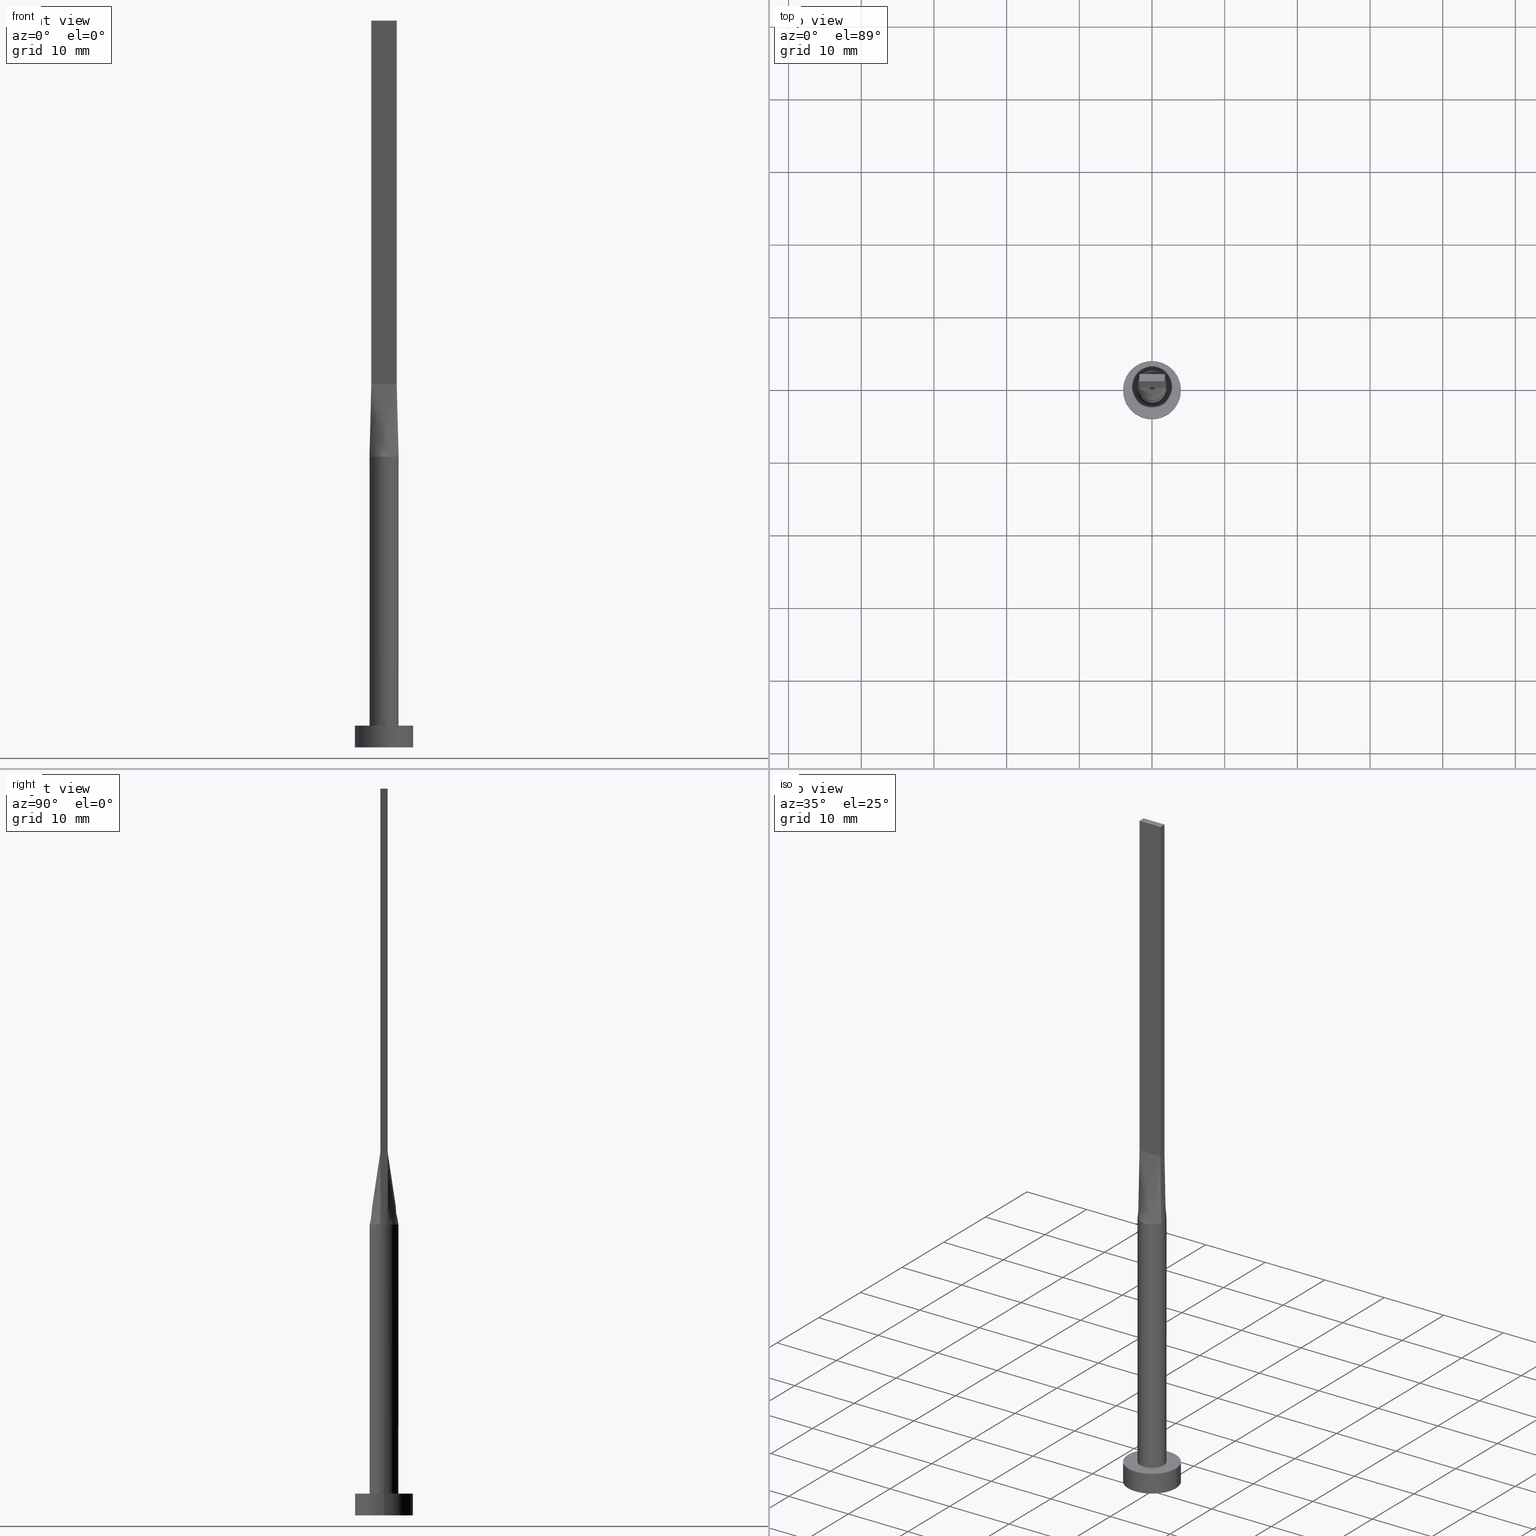
[diagram: canonical four-view strip — front | top / right | iso, engineering-drawing reading convention]
A machine part, canonical four-view strip (front | top / right | iso — engineering-drawing reading convention). The complete STEP part file that produces these views, byte-faithful:
ISO-10303-21;
HEADER;
FILE_DESCRIPTION (( 'STEP AP203' ),
    '1' );
FILE_NAME ('582c.STEP',
    '2023-02-13T12:16:05',
    ( '' ),
    ( '' ),
    'SwSTEP 2.0',
    'SolidWorks 2019',
    '' );
FILE_SCHEMA (( 'CONFIG_CONTROL_DESIGN' ));
ENDSEC;

DATA;
#1 = COORDINATED_UNIVERSAL_TIME_OFFSET ( 1, 0, .AHEAD. ) ;
#2 = CARTESIAN_POINT ( 'NONE',  ( -1.750000000000000000, -0.4999999999999995559, 100.0000000000000000 ) ) ;
#3 = CARTESIAN_POINT ( 'NONE',  ( 1.923047895281646102, -0.5494422557947566954, 40.00000000000000000 ) ) ;
#4 = ORIENTED_EDGE ( 'NONE', *, *, #26, .T. ) ;
#5 = CARTESIAN_POINT ( 'NONE',  ( 1.749999999999999778, 0.5000000000000002220, 100.0000000000000000 ) ) ;
#6 = CARTESIAN_POINT ( 'NONE',  ( 1.973362360690451567, 0.3733416268639386804, 40.00000000000000000 ) ) ;
#7 = LINE ( 'NONE', #135, #498 ) ;
#8 = ORIENTED_EDGE ( 'NONE', *, *, #58, .T. ) ;
#9 = CARTESIAN_POINT ( 'NONE',  ( 0.2916666666666681285, -0.4999999999999997780, 50.00000000000000000 ) ) ;
#10 = CARTESIAN_POINT ( 'NONE',  ( -2.000000000000000000, 0.000000000000000000, 40.00000000000000000 ) ) ;
#11 = ORIENTED_EDGE ( 'NONE', *, *, #225, .T. ) ;
#12 = APPROVAL_PERSON_ORGANIZATION ( #78, #377, #303 ) ;
#13 = CARTESIAN_POINT ( 'NONE',  ( 1.155438169178558017, -1.647245198242354158, 40.00000000000002132 ) ) ;
#14 = LINE ( 'NONE', #244, #236 ) ;
#15 = EDGE_CURVE ( 'NONE', #76, #77, #482, .T. ) ;
#16 = APPROVAL_PERSON_ORGANIZATION ( #169, #434, #28 ) ;
#17 =( NAMED_UNIT ( * ) SI_UNIT ( $, .STERADIAN. ) SOLID_ANGLE_UNIT ( ) );
#18 = CARTESIAN_POINT ( 'NONE',  ( -1.879022738048941710, 0.7035303061092221810, 40.00000000000000000 ) ) ;
#19 = ORIENTED_EDGE ( 'NONE', *, *, #497, .T. ) ;
#20 = EDGE_CURVE ( 'NONE', #469, #278, #352, .T. ) ;
#21 = ORIENTED_EDGE ( 'NONE', *, *, #326, .T. ) ;
#22 = DIRECTION ( 'NONE',  ( 0.000000000000000000, 0.000000000000000000, 1.000000000000000000 ) ) ;
#23 = CARTESIAN_POINT ( 'NONE',  ( 0.5022746254375803909, 1.951069421695587947, 40.00000000000000000 ) ) ;
#24 = ORIENTED_EDGE ( 'NONE', *, *, #15, .T. ) ;
#25 = CARTESIAN_POINT ( 'NONE',  ( -0.1458333333333343695, 0.5000000000000002220, 50.00000000000000000 ) ) ;
#26 = EDGE_CURVE ( 'NONE', #100, #422, #350, .T. ) ;
#27 = COORDINATED_UNIVERSAL_TIME_OFFSET ( 1, 0, .AHEAD. ) ;
#28 = APPROVAL_ROLE ( '' ) ;
#29 = DIRECTION ( 'NONE',  ( -0.000000000000000000, -0.000000000000000000, -1.000000000000000000 ) ) ;
#30 = LOCAL_TIME ( 13, 16, 5.000000000000000000, #27 ) ;
#31 = DIRECTION ( 'NONE',  ( 1.000000000000000000, 0.000000000000000000, 0.000000000000000000 ) ) ;
#32 = PERSON_AND_ORGANIZATION_ROLE ( 'classification_officer' ) ;
#33 = DATE_AND_TIME ( #79, #140 ) ;
#34 = DIRECTION ( 'NONE',  ( -1.000000000000000000, 0.000000000000000000, 0.000000000000000000 ) ) ;
#35 = DIRECTION ( 'NONE',  ( -0.000000000000000000, -0.000000000000000000, -1.000000000000000000 ) ) ;
#36 = CARTESIAN_POINT ( 'NONE',  ( -1.750000000000000000, -0.4999999999999995559, 100.0000000000000000 ) ) ;
#37 = EDGE_CURVE ( 'NONE', #301, #278, #118, .T. ) ;
#38 = CLOSED_SHELL ( 'NONE', ( #445, #529, #114, #138, #414, #519, #302, #552, #289, #246, #409, #512, #230, #62, #183 ) ) ;
#39 = CYLINDRICAL_SURFACE ( 'NONE', #467, 2.000000000000000000 ) ;
#40 = ORIENTED_EDGE ( 'NONE', *, *, #210, .T. ) ;
#41 = CARTESIAN_POINT ( 'NONE',  ( -4.000000000000000000, 0.000000000000000000, 0.000000000000000000 ) ) ;
#42 = VECTOR ( 'NONE', #357, 1000.000000000000000 ) ;
#43 = FACE_OUTER_BOUND ( 'NONE', #397, .T. ) ;
#44 = CARTESIAN_POINT ( 'NONE',  ( 1.616149014776643522, 1.193458220519943103, 40.00000000000000000 ) ) ;
#45 = VECTOR ( 'NONE', #71, 1000.000000000000000 ) ;
#46 = CARTESIAN_POINT ( 'NONE',  ( 0.000000000000000000, 0.000000000000000000, 40.00000000000000000 ) ) ;
#47 = DIRECTION ( 'NONE',  ( 1.000000000000000000, 0.000000000000000000, 0.000000000000000000 ) ) ;
#48 = CARTESIAN_POINT ( 'NONE',  ( 1.749999999999998890, 0.5000000000000002220, 50.00000000000000000 ) ) ;
#49 = DIRECTION ( 'NONE',  ( 0.000000000000000000, 0.000000000000000000, 1.000000000000000000 ) ) ;
#50 = CARTESIAN_POINT ( 'NONE',  ( 1.923186205402444449, -0.5494823831763672173, 40.00000000000000000 ) ) ;
#51 = EDGE_CURVE ( 'NONE', #410, #278, #219, .T. ) ;
#52 = CARTESIAN_POINT ( 'NONE',  ( 0.5833333333333347026, -0.4999999999999997780, 50.00000000000000000 ) ) ;
#53 = CARTESIAN_POINT ( 'NONE',  ( -1.923047895281646547, -0.5494422557947552521, 40.00000000000000000 ) ) ;
#54 = VERTEX_POINT ( 'NONE', #569 ) ;
#55 = CARTESIAN_POINT ( 'NONE',  ( -0.7291666666666652974, -0.4999999999999995559, 50.00000000000000000 ) ) ;
#56 = APPROVAL_DATE_TIME ( #316, #239 ) ;
#57 = ORIENTED_EDGE ( 'NONE', *, *, #265, .T. ) ;
#58 = EDGE_CURVE ( 'NONE', #422, #84, #248, .T. ) ;
#59 = CARTESIAN_POINT ( 'NONE',  ( -1.155438169178558017, 1.647245198242353936, 40.00000000000001421 ) ) ;
#60 =( GEOMETRIC_REPRESENTATION_CONTEXT ( 3 ) GLOBAL_UNCERTAINTY_ASSIGNED_CONTEXT ( ( #291 ) ) GLOBAL_UNIT_ASSIGNED_CONTEXT ( ( #337, #426, #17 ) ) REPRESENTATION_CONTEXT ( 'NONE', 'WORKASPACE' ) );
#61 = CARTESIAN_POINT ( 'NONE',  ( 1.812374357931689106, -0.8669367617086289890, 40.00000000000000000 ) ) ;
#62 = ADVANCED_FACE ( 'NONE', ( #491 ), #531, .F. ) ;
#63 = CARTESIAN_POINT ( 'NONE',  ( -1.750000000000000000, -0.4999999999999995559, 100.0000000000000000 ) ) ;
#64 = PERSON_AND_ORGANIZATION ( #80, #232 ) ;
#65 = ORIENTED_EDGE ( 'NONE', *, *, #320, .T. ) ;
#66 = CARTESIAN_POINT ( 'NONE',  ( 1.616149014776643522, -1.193458220519943547, 40.00000000000000000 ) ) ;
#67 = ORIENTED_EDGE ( 'NONE', *, *, #155, .T. ) ;
#68 = CARTESIAN_POINT ( 'NONE',  ( 1.020833333333331927, 0.5000000000000002220, 50.00000000000000000 ) ) ;
#69 = VERTEX_POINT ( 'NONE', #579 ) ;
#70 = AXIS2_PLACEMENT_3D ( 'NONE', #46, #266, #129 ) ;
#71 = DIRECTION ( 'NONE',  ( -0.000000000000000000, -0.000000000000000000, -1.000000000000000000 ) ) ;
#72 = DATE_AND_TIME ( #435, #260 ) ;
#73 = ORIENTED_EDGE ( 'NONE', *, *, #94, .T. ) ;
#74 = EDGE_CURVE ( 'NONE', #561, #77, #14, .T. ) ;
#75 = CARTESIAN_POINT ( 'NONE',  ( 0.1458333333333322601, 0.5000000000000002220, 50.00000000000000000 ) ) ;
#76 = VERTEX_POINT ( 'NONE', #408 ) ;
#77 = VERTEX_POINT ( 'NONE', #151 ) ;
#78 = PERSON_AND_ORGANIZATION ( #80, #232 ) ;
#79 = CALENDAR_DATE ( 2023, 13, 2 ) ;
#80 = PERSON ( 'NEUR�EN�', 'NEUR�EN�', 'NEUR�EN�', ('NEUR�EN�'), ('NEUR�EN�'), ('NEUR�EN�') ) ;
#81 = AXIS2_PLACEMENT_3D ( 'NONE', #526, #22, #203 ) ;
#82 = CARTESIAN_POINT ( 'NONE',  ( 1.750000000000000000, -0.4999999999999997780, 100.0000000000000000 ) ) ;
#83 = CARTESIAN_POINT ( 'NONE',  ( 0.000000000000000000, 0.000000000000000000, 40.00000000000000000 ) ) ;
#84 = VERTEX_POINT ( 'NONE', #359 ) ;
#85 = EDGE_CURVE ( 'NONE', #278, #76, #106, .T. ) ;
#86 = DIRECTION ( 'NONE',  ( 0.000000000000000000, 0.000000000000000000, 1.000000000000000000 ) ) ;
#87 = DIRECTION ( 'NONE',  ( -1.000000000000000000, 6.195440985631454085E-17, 0.000000000000000000 ) ) ;
#88 = DIRECTION ( 'NONE',  ( 1.000000000000000000, 0.000000000000000000, 0.000000000000000000 ) ) ;
#89 = DIRECTION ( 'NONE',  ( -1.000000000000000000, 0.000000000000000000, 0.000000000000000000 ) ) ;
#90 = APPROVAL_ROLE ( '' ) ;
#91 = CARTESIAN_POINT ( 'NONE',  ( 1.999999999999999556, -0.1867399261870124894, 39.99999999999999289 ) ) ;
#92 = LOCAL_TIME ( 13, 16, 5.000000000000000000, #1 ) ;
#93 = FACE_OUTER_BOUND ( 'NONE', #360, .T. ) ;
#94 = EDGE_CURVE ( 'NONE', #410, #384, #7, .T. ) ;
#95 = PERSON_AND_ORGANIZATION_ROLE ( 'creator' ) ;
#96 = VERTEX_POINT ( 'NONE', #501 ) ;
#97 = CARTESIAN_POINT ( 'NONE',  ( -0.2916666666666653529, -0.4999999999999995559, 50.00000000000000000 ) ) ;
#98 = VECTOR ( 'NONE', #108, 1000.000000000000227 ) ;
#99 = EDGE_CURVE ( 'NONE', #285, #228, #368, .T. ) ;
#100 = VERTEX_POINT ( 'NONE', #238 ) ;
#101 = CARTESIAN_POINT ( 'NONE',  ( -1.749999999999999778, 0.5000000000000002220, 50.00000000000000000 ) ) ;
#102 = DIRECTION ( 'NONE',  ( -0.000000000000000000, -0.000000000000000000, -1.000000000000000000 ) ) ;
#103 = CARTESIAN_POINT ( 'NONE',  ( 1.749999999999999778, 0.5000000000000002220, 50.00000000000000000 ) ) ;
#104 = ORIENTED_EDGE ( 'NONE', *, *, #570, .T. ) ;
#105 = CIRCLE ( 'NONE', #580, 2.000000000000000000 ) ;
#106 = LINE ( 'NONE', #101, #220 ) ;
#107 = CARTESIAN_POINT ( 'NONE',  ( 1.923047895281646325, -0.5494422557947558072, 40.00000000000000000 ) ) ;
#108 = DIRECTION ( 'NONE',  ( -0.01730198768854152372, -0.004943425053868953992, -0.9998380887777591486 ) ) ;
#109 = FACE_OUTER_BOUND ( 'NONE', #386, .T. ) ;
#110 = ORIENTED_EDGE ( 'NONE', *, *, #309, .F. ) ;
#111 = CARTESIAN_POINT ( 'NONE',  ( -1.458333333333333481, 0.5000000000000002220, 50.00000000000000000 ) ) ;
#112 = SECURITY_CLASSIFICATION_LEVEL ( 'unclassified' ) ;
#113 = CARTESIAN_POINT ( 'NONE',  ( -1.749999999999999778, 0.1666666666666667129, 50.00000000000000000 ) ) ;
#114 = ADVANCED_FACE ( 'NONE', ( #418 ), #152, .T. ) ;
#115 = ORIENTED_EDGE ( 'NONE', *, *, #394, .T. ) ;
#116 = AXIS2_PLACEMENT_3D ( 'NONE', #229, #333, #141 ) ;
#117 = CARTESIAN_POINT ( 'NONE',  ( 0.9545234919502409987, 1.774214358793529955, 40.00000000000000000 ) ) ;
#118 = LINE ( 'NONE', #178, #276 ) ;
#119 = B_SPLINE_SURFACE_WITH_KNOTS ( 'NONE', 3, 1, ( 
 ( #124, #487 ),
 ( #406, #548 ),
 ( #492, #221 ),
 ( #455, #306 ),
 ( #231, #137 ),
 ( #144, #55 ),
 ( #508, #315 ),
 ( #270, #97 ),
 ( #370, #361 ),
 ( #233, #277 ),
 ( #459, #9 ),
 ( #464, #52 ),
 ( #13, #147 ),
 ( #365, #160 ),
 ( #66, #428 ),
 ( #61, #157 ),
 ( #330, #558 ),
 ( #107, #520 ) ),
 .UNSPECIFIED., .F., .F., .F.,
 ( 4, 2, 2, 2, 2, 2, 2, 2, 4 ),
 ( 2, 2 ),
 ( 0.000000000000000000, 0.1249999999999999722, 0.2500000000000000000, 0.3750000000000000000, 0.5000000000000001110, 0.6250000000000001110, 0.7500000000000000000, 0.8750000000000000000, 1.000000000000000000 ),
 ( 0.000000000000000000, 1.000000000000000000 ),
 .UNSPECIFIED. ) ;
#120 = CARTESIAN_POINT ( 'NONE',  ( -1.749999999999999778, 0.3333333333333334259, 50.00000000000000000 ) ) ;
#121 = CARTESIAN_POINT ( 'NONE',  ( -1.749999999999999778, 0.5000000000000002220, 50.00000000000000000 ) ) ;
#122 = DATE_TIME_ROLE ( 'classification_date' ) ;
#123 = CARTESIAN_POINT ( 'NONE',  ( -1.749999999999999778, -0.1666666666666665186, 50.00000000000000000 ) ) ;
#124 = CARTESIAN_POINT ( 'NONE',  ( -1.923047895281646547, -0.5494422557947552521, 40.00000000000000000 ) ) ;
#125 = DIRECTION ( 'NONE',  ( 1.000000000000000000, 0.000000000000000000, 0.000000000000000000 ) ) ;
#126 = EDGE_CURVE ( 'NONE', #384, #76, #211, .T. ) ;
#127 = DIRECTION ( 'NONE',  ( 1.000000000000000000, -6.195440985631454085E-17, 0.000000000000000000 ) ) ;
#128 = CARTESIAN_POINT ( 'NONE',  ( -1.749999999999999778, 0.5000000000000002220, 100.0000000000000000 ) ) ;
#129 = DIRECTION ( 'NONE',  ( -1.000000000000000000, 0.000000000000000000, 0.000000000000000000 ) ) ;
#130 = CARTESIAN_POINT ( 'NONE',  ( 1.923154993136894975, 0.5494733089275741778, 40.00000000000000000 ) ) ;
#131 = CARTESIAN_POINT ( 'NONE',  ( 0.000000000000000000, 0.000000000000000000, 3.000000000000000000 ) ) ;
#132 = APPLICATION_PROTOCOL_DEFINITION ( 'international standard', 'config_control_design', 1994, #344 ) ;
#133 = CARTESIAN_POINT ( 'NONE',  ( 0.000000000000000000, 0.000000000000000000, 0.000000000000000000 ) ) ;
#134 = ORIENTED_EDGE ( 'NONE', *, *, #507, .T. ) ;
#135 = CARTESIAN_POINT ( 'NONE',  ( -1.749999999999999778, 0.5000000000000002220, 100.0000000000000000 ) ) ;
#136 = CARTESIAN_POINT ( 'NONE',  ( 1.923047895281646325, 0.5494422557947561403, 40.00000000000000000 ) ) ;
#137 = CARTESIAN_POINT ( 'NONE',  ( -1.020833333333332149, -0.4999999999999995559, 50.00000000000000000 ) ) ;
#138 = ADVANCED_FACE ( 'NONE', ( #215, #317 ), #575, .T. ) ;
#139 = CARTESIAN_POINT ( 'NONE',  ( 1.749999999999999778, 0.5000000000000002220, 50.00000000000000000 ) ) ;
#140 = LOCAL_TIME ( 13, 16, 5.000000000000000000, #392 ) ;
#141 = DIRECTION ( 'NONE',  ( 1.000000000000000000, 0.000000000000000000, 0.000000000000000000 ) ) ;
#142 = ORIENTED_EDGE ( 'NONE', *, *, #194, .F. ) ;
#143 = EDGE_CURVE ( 'NONE', #228, #285, #564, .T. ) ;
#144 = CARTESIAN_POINT ( 'NONE',  ( -1.155438169178558461, -1.647245198242353714, 40.00000000000000711 ) ) ;
#145 = APPROVAL_STATUS ( 'not_yet_approved' ) ;
#146 = AXIS2_PLACEMENT_3D ( 'NONE', #274, #470, #456 ) ;
#147 = CARTESIAN_POINT ( 'NONE',  ( 0.7291666666666678509, -0.4999999999999997780, 50.00000000000000000 ) ) ;
#148 = CARTESIAN_POINT ( 'NONE',  ( -1.486037034853319616, 1.356520562679218056, 40.00000000000000000 ) ) ;
#149 = CARTESIAN_POINT ( 'NONE',  ( 1.604166666666665408, 0.5000000000000002220, 50.00000000000000000 ) ) ;
#150 = AXIS2_PLACEMENT_3D ( 'NONE', #307, #49, #412 ) ;
#151 = CARTESIAN_POINT ( 'NONE',  ( 1.750000000000000000, -0.4999999999999997780, 50.00000000000000000 ) ) ;
#152 = CYLINDRICAL_SURFACE ( 'NONE', #146, 4.000000000000000000 ) ;
#153 = EDGE_LOOP ( 'NONE', ( #533, #247 ) ) ;
#154 = ORIENTED_EDGE ( 'NONE', *, *, #210, .F. ) ;
#155 = EDGE_CURVE ( 'NONE', #54, #469, #355, .T. ) ;
#156 = B_SPLINE_SURFACE_WITH_KNOTS ( 'NONE', 3, 1, ( 
 ( #3, #577 ),
 ( #396, #462 ),
 ( #91, #268 ),
 ( #354, #181 ),
 ( #6, #544 ),
 ( #356, #139 ) ),
 .UNSPECIFIED., .F., .F., .F.,
 ( 4, 2, 4 ),
 ( 2, 2 ),
 ( 0.000000000000000000, 0.5000000000000000000, 1.000000000000000000 ),
 ( 0.000000000000000000, 1.000000000000000000 ),
 .UNSPECIFIED. ) ;
#157 = CARTESIAN_POINT ( 'NONE',  ( 1.458333333333333925, -0.4999999999999997780, 50.00000000000000000 ) ) ;
#158 = VECTOR ( 'NONE', #420, 1000.000000000000000 ) ;
#159 = ORIENTED_EDGE ( 'NONE', *, *, #37, .F. ) ;
#160 = CARTESIAN_POINT ( 'NONE',  ( 1.020833333333334147, -0.4999999999999997780, 50.00000000000000000 ) ) ;
#161 = CARTESIAN_POINT ( 'NONE',  ( 4.000000000000000000, 4.898587196589412829E-16, 0.000000000000000000 ) ) ;
#162 = ORIENTED_EDGE ( 'NONE', *, *, #265, .F. ) ;
#163 = CARTESIAN_POINT ( 'NONE',  ( 1.166666666666665186, 0.5000000000000002220, 50.00000000000000000 ) ) ;
#164 = EDGE_CURVE ( 'NONE', #54, #410, #358, .T. ) ;
#165 = ORIENTED_EDGE ( 'NONE', *, *, #478, .T. ) ;
#166 = VECTOR ( 'NONE', #35, 1000.000000000000000 ) ;
#167 = PERSON_AND_ORGANIZATION_ROLE ( 'creator' ) ;
#168 = ORIENTED_EDGE ( 'NONE', *, *, #126, .F. ) ;
#169 = PERSON_AND_ORGANIZATION ( #80, #232 ) ;
#170 = APPROVAL_PERSON_ORGANIZATION ( #190, #239, #90 ) ;
#171 = CARTESIAN_POINT ( 'NONE',  ( -1.604166666666666519, 0.5000000000000002220, 50.00000000000000000 ) ) ;
#172 = DIRECTION ( 'NONE',  ( 0.000000000000000000, 0.000000000000000000, 1.000000000000000000 ) ) ;
#173 = CARTESIAN_POINT ( 'NONE',  ( 0.7291666666666652974, 0.5000000000000002220, 50.00000000000000000 ) ) ;
#174 = FACE_OUTER_BOUND ( 'NONE', #522, .T. ) ;
#175 = ORIENTED_EDGE ( 'NONE', *, *, #99, .F. ) ;
#176 = COORDINATED_UNIVERSAL_TIME_OFFSET ( 1, 0, .AHEAD. ) ;
#177 = PERSON_AND_ORGANIZATION_ROLE ( 'design_owner' ) ;
#178 = CARTESIAN_POINT ( 'NONE',  ( -1.836523947640823051, 0.5247211278973779036, 45.00000000000000000 ) ) ;
#179 = CARTESIAN_POINT ( 'NONE',  ( -1.749999999999999778, 0.5000000000000002220, 100.0000000000000000 ) ) ;
#180 = CARTESIAN_POINT ( 'NONE',  ( 0.000000000000000000, 0.000000000000000000, 3.000000000000000000 ) ) ;
#181 = CARTESIAN_POINT ( 'NONE',  ( 1.749999999999999778, 0.1666666666666663243, 50.00000000000000000 ) ) ;
#182 = DIRECTION ( 'NONE',  ( 0.000000000000000000, -0.000000000000000000, -1.000000000000000000 ) ) ;
#183 = ADVANCED_FACE ( 'NONE', ( #93 ), #461, .T. ) ;
#184 = DIRECTION ( 'NONE',  ( -0.000000000000000000, -0.000000000000000000, -1.000000000000000000 ) ) ;
#185 = DIRECTION ( 'NONE',  ( -0.000000000000000000, -0.000000000000000000, -1.000000000000000000 ) ) ;
#186 = AXIS2_PLACEMENT_3D ( 'NONE', #348, #530, #125 ) ;
#187 = ORIENTED_EDGE ( 'NONE', *, *, #394, .F. ) ;
#188 = CC_DESIGN_PERSON_AND_ORGANIZATION_ASSIGNMENT ( #64, #167, ( #419 ) ) ;
#189 = CARTESIAN_POINT ( 'NONE',  ( -1.749999999999999778, -0.3333333333333330373, 50.00000000000000000 ) ) ;
#190 = PERSON_AND_ORGANIZATION ( #80, #232 ) ;
#191 = B_SPLINE_CURVE_WITH_KNOTS ( 'NONE', 3,
 ( #130, #267, #452, #44, #495, #502, #335, #327, #473, #325, #234, #415, #59, #148, #245, #421, #18, #374 ),
 .UNSPECIFIED., .F., .F.,
 ( 4, 2, 2, 2, 2, 2, 2, 2, 4 ),
 ( 0.000000000000000000, 0.1249999999999999722, 0.2500000000000000000, 0.3750000000000000000, 0.5000000000000001110, 0.6250000000000001110, 0.7500000000000000000, 0.8750000000000000000, 1.000000000000000000 ),
 .UNSPECIFIED. ) ;
#192 = CIRCLE ( 'NONE', #81, 2.000000000000000000 ) ;
#193 = EDGE_LOOP ( 'NONE', ( #241, #175 ) ) ;
#194 = EDGE_CURVE ( 'NONE', #468, #84, #395, .T. ) ;
#195 = VERTEX_POINT ( 'NONE', #363 ) ;
#196 = ORIENTED_EDGE ( 'NONE', *, *, #74, .T. ) ;
#197 = CC_DESIGN_APPROVAL ( #434, ( #369 ) ) ;
#198 = ORIENTED_EDGE ( 'NONE', *, *, #20, .T. ) ;
#199 = EDGE_CURVE ( 'NONE', #301, #468, #364, .T. ) ;
#200 = CARTESIAN_POINT ( 'NONE',  ( -0.5022746254375797248, 1.951069421695588169, 40.00000000000000000 ) ) ;
#201 = DIRECTION ( 'NONE',  ( 1.000000000000000000, 0.000000000000000000, 0.000000000000000000 ) ) ;
#202 = PERSON_AND_ORGANIZATION ( #80, #232 ) ;
#203 = DIRECTION ( 'NONE',  ( 1.000000000000000000, 3.552713678800500929E-15, 0.000000000000000000 ) ) ;
#204 = CARTESIAN_POINT ( 'NONE',  ( -0.2916666666666677954, 0.5000000000000002220, 50.00000000000000000 ) ) ;
#205 = ORIENTED_EDGE ( 'NONE', *, *, #164, .T. ) ;
#206 = EDGE_LOOP ( 'NONE', ( #198, #416, #378, #67 ) ) ;
#207 = CARTESIAN_POINT ( 'NONE',  ( -1.155438169178558017, 1.647245198242353936, 40.00000000000001421 ) ) ;
#208 = CIRCLE ( 'NONE', #116, 2.000000000000000000 ) ;
#209 = APPROVAL_DATE_TIME ( #72, #377 ) ;
#210 = EDGE_CURVE ( 'NONE', #561, #100, #192, .T. ) ;
#211 = LINE ( 'NONE', #2, #399 ) ;
#212 = CARTESIAN_POINT ( 'NONE',  ( 0.000000000000000000, 0.000000000000000000, 3.000000000000000000 ) ) ;
#213 = DIRECTION ( 'NONE',  ( -0.000000000000000000, -0.000000000000000000, -1.000000000000000000 ) ) ;
#214 = DIRECTION ( 'NONE',  ( 6.195440985631454085E-17, 1.000000000000000000, -0.000000000000000000 ) ) ;
#215 = FACE_BOUND ( 'NONE', #514, .T. ) ;
#216 = CARTESIAN_POINT ( 'NONE',  ( 1.486037034853319616, 1.356520562679217834, 39.99999999999997868 ) ) ;
#217 = DIRECTION ( 'NONE',  ( 0.000000000000000000, 0.000000000000000000, 1.000000000000000000 ) ) ;
#218 = FACE_OUTER_BOUND ( 'NONE', #193, .T. ) ;
#219 = LINE ( 'NONE', #128, #166 ) ;
#220 = VECTOR ( 'NONE', #427, 1000.000000000000000 ) ;
#221 = CARTESIAN_POINT ( 'NONE',  ( -1.458333333333332815, -0.4999999999999995559, 50.00000000000000000 ) ) ;
#222 = CARTESIAN_POINT ( 'NONE',  ( 0.000000000000000000, 0.000000000000000000, 0.000000000000000000 ) ) ;
#223 = DESIGN_CONTEXT ( 'detailed design', #442, 'design' ) ;
#224 = AXIS2_PLACEMENT_3D ( 'NONE', #547, #436, #336 ) ;
#225 = EDGE_CURVE ( 'NONE', #77, #469, #566, .T. ) ;
#226 = CARTESIAN_POINT ( 'NONE',  ( 1.836523947640823051, 0.5247211278973783477, 45.00000000000000000 ) ) ;
#227 = DIRECTION ( 'NONE',  ( -0.000000000000000000, -0.000000000000000000, -1.000000000000000000 ) ) ;
#228 = VERTEX_POINT ( 'NONE', #41 ) ;
#229 = CARTESIAN_POINT ( 'NONE',  ( 0.000000000000000000, 0.000000000000000000, 40.00000000000000000 ) ) ;
#230 = ADVANCED_FACE ( 'NONE', ( #535 ), #581, .F. ) ;
#231 = CARTESIAN_POINT ( 'NONE',  ( -1.486037034853320060, -1.356520562679217390, 39.99999999999999289 ) ) ;
#232 = ORGANIZATION ( 'NEUR�EN�', 'NEUR�EN�', '' ) ;
#233 = CARTESIAN_POINT ( 'NONE',  ( 0.2514338042514523419, -2.000000000000000444, 40.00000000000000000 ) ) ;
#234 = CARTESIAN_POINT ( 'NONE',  ( -0.5022746254375797248, 1.951069421695588169, 40.00000000000000000 ) ) ;
#235 = ORIENTED_EDGE ( 'NONE', *, *, #320, .F. ) ;
#236 = VECTOR ( 'NONE', #515, 1000.000000000000227 ) ;
#237 = AXIS2_PLACEMENT_3D ( 'NONE', #180, #271, #402 ) ;
#238 = CARTESIAN_POINT ( 'NONE',  ( 2.000000000000000000, 2.759698982225367658E-17, 39.99999999999999289 ) ) ;
#239 = APPROVAL ( #145, 'NEUR�EN�' ) ;
#240 = AXIS2_PLACEMENT_3D ( 'NONE', #133, #86, #541 ) ;
#241 = ORIENTED_EDGE ( 'NONE', *, *, #143, .F. ) ;
#242 = CARTESIAN_POINT ( 'NONE',  ( -1.999999999999999556, 0.1867399261870127114, 39.99999999999999289 ) ) ;
#243 = EDGE_LOOP ( 'NONE', ( #494, #168, #565, #559 ) ) ;
#244 = CARTESIAN_POINT ( 'NONE',  ( 1.836523947640823051, -0.5247211278973777926, 45.00000000000000000 ) ) ;
#245 = CARTESIAN_POINT ( 'NONE',  ( -1.616149014776643966, 1.193458220519943103, 40.00000000000002132 ) ) ;
#246 = ADVANCED_FACE ( 'NONE', ( #538 ), #387, .T. ) ;
#247 = ORIENTED_EDGE ( 'NONE', *, *, #537, .T. ) ;
#248 = CIRCLE ( 'NONE', #314, 2.000000000000000000 ) ;
#249 = CARTESIAN_POINT ( 'NONE',  ( -0.7291666666666674068, 0.5000000000000002220, 50.00000000000000000 ) ) ;
#250 = DIRECTION ( 'NONE',  ( 0.000000000000000000, 0.000000000000000000, 1.000000000000000000 ) ) ;
#251 = AXIS2_PLACEMENT_3D ( 'NONE', #212, #217, #403 ) ;
#252 = FACE_OUTER_BOUND ( 'NONE', #243, .T. ) ;
#253 = ORIENTED_EDGE ( 'NONE', *, *, #99, .T. ) ;
#254 = CARTESIAN_POINT ( 'NONE',  ( -1.750000000000000000, -0.4999999999999995559, 50.00000000000000000 ) ) ;
#255 = CARTESIAN_POINT ( 'NONE',  ( 0.000000000000000000, 0.000000000000000000, 0.000000000000000000 ) ) ;
#256 = LINE ( 'NONE', #443, #568 ) ;
#257 = CC_DESIGN_PERSON_AND_ORGANIZATION_ASSIGNMENT ( #202, #432, ( #419 ) ) ;
#258 = APPROVAL_STATUS ( 'not_yet_approved' ) ;
#259 = DIRECTION ( 'NONE',  ( 1.000000000000000000, 0.000000000000000000, 0.000000000000000000 ) ) ;
#260 = LOCAL_TIME ( 13, 16, 5.000000000000000000, #176 ) ;
#261 = CC_DESIGN_APPROVAL ( #239, ( #419 ) ) ;
#262 = ORIENTED_EDGE ( 'NONE', *, *, #457, .T. ) ;
#263 = CARTESIAN_POINT ( 'NONE',  ( 0.000000000000000000, 0.000000000000000000, 40.00000000000000000 ) ) ;
#264 = DIRECTION ( 'NONE',  ( 0.01730198768854152372, -0.004943425053868931440, 0.9998380887777591486 ) ) ;
#265 = EDGE_CURVE ( 'NONE', #96, #228, #256, .T. ) ;
#266 = DIRECTION ( 'NONE',  ( -0.000000000000000000, -0.000000000000000000, -1.000000000000000000 ) ) ;
#267 = CARTESIAN_POINT ( 'NONE',  ( 1.879022738048942154, 0.7035303061092218480, 39.99999999999999289 ) ) ;
#268 = CARTESIAN_POINT ( 'NONE',  ( 1.749999999999999778, -0.1666666666666669905, 50.00000000000000000 ) ) ;
#269 = CARTESIAN_POINT ( 'NONE',  ( 1.749999999999999778, 0.5000000000000002220, 100.0000000000000000 ) ) ;
#270 = CARTESIAN_POINT ( 'NONE',  ( -0.5022746254375808350, -1.951069421695587724, 40.00000000000000000 ) ) ;
#271 = DIRECTION ( 'NONE',  ( 0.000000000000000000, 0.000000000000000000, 1.000000000000000000 ) ) ;
#272 = DIRECTION ( 'NONE',  ( 2.168404344971009361E-16, 1.000000000000000000, 0.000000000000000000 ) ) ;
#273 = PRODUCT_RELATED_PRODUCT_CATEGORY ( 'detail', '', ( #509 ) ) ;
#274 = CARTESIAN_POINT ( 'NONE',  ( 0.000000000000000000, 0.000000000000000000, 3.000000000000000000 ) ) ;
#275 = CARTESIAN_POINT ( 'NONE',  ( 1.458333333333332149, 0.5000000000000002220, 50.00000000000000000 ) ) ;
#276 = VECTOR ( 'NONE', #264, 1000.000000000000227 ) ;
#277 = CARTESIAN_POINT ( 'NONE',  ( 0.1458333333333347304, -0.4999999999999997780, 50.00000000000000000 ) ) ;
#278 = VERTEX_POINT ( 'NONE', #393 ) ;
#279 = ADVANCED_BREP_SHAPE_REPRESENTATION ( '582c', ( #411, #546 ), #60 ) ;
#280 = CC_DESIGN_SECURITY_CLASSIFICATION ( #511, ( #419 ) ) ;
#281 = ORIENTED_EDGE ( 'NONE', *, *, #309, .T. ) ;
#282 = ORIENTED_EDGE ( 'NONE', *, *, #126, .T. ) ;
#283 = EDGE_CURVE ( 'NONE', #96, #69, #296, .T. ) ;
#284 = DIRECTION ( 'NONE',  ( -2.168404344971009361E-16, -1.000000000000000000, 0.000000000000000000 ) ) ;
#285 = VERTEX_POINT ( 'NONE', #161 ) ;
#286 = LOCAL_TIME ( 13, 16, 5.000000000000000000, #454 ) ;
#287 = ORIENTED_EDGE ( 'NONE', *, *, #26, .F. ) ;
#288 = CARTESIAN_POINT ( 'NONE',  ( 1.750000000000000000, -0.4999999999999997780, 100.0000000000000000 ) ) ;
#289 = ADVANCED_FACE ( 'NONE', ( #109 ), #299, .T. ) ;
#290 = ORIENTED_EDGE ( 'NONE', *, *, #143, .T. ) ;
#291 = UNCERTAINTY_MEASURE_WITH_UNIT (LENGTH_MEASURE( 1.000000000000000082E-05 ), #337, 'distance_accuracy_value', 'NONE');
#292 = CARTESIAN_POINT ( 'NONE',  ( -1.923047895281646102, 0.5494422557947564734, 40.00000000000000000 ) ) ;
#293 = ORIENTED_EDGE ( 'NONE', *, *, #507, .F. ) ;
#294 = CARTESIAN_POINT ( 'NONE',  ( -1.879022738048941710, 0.7035303061092221810, 40.00000000000000000 ) ) ;
#295 = CARTESIAN_POINT ( 'NONE',  ( -1.999999999999999556, -0.1867399261870113791, 39.99999999999998579 ) ) ;
#296 = CIRCLE ( 'NONE', #186, 4.000000000000000000 ) ;
#297 = ORIENTED_EDGE ( 'NONE', *, *, #58, .F. ) ;
#298 = CARTESIAN_POINT ( 'NONE',  ( 0.5833333333333319271, 0.5000000000000002220, 50.00000000000000000 ) ) ;
#299 = B_SPLINE_SURFACE_WITH_KNOTS ( 'NONE', 3, 1, ( 
 ( #292, #383 ),
 ( #560, #120 ),
 ( #242, #113 ),
 ( #295, #123 ),
 ( #413, #189 ),
 ( #53, #527 ) ),
 .UNSPECIFIED., .F., .F., .F.,
 ( 4, 2, 4 ),
 ( 2, 2 ),
 ( 0.000000000000000000, 0.5000000000000000000, 1.000000000000000000 ),
 ( 0.000000000000000000, 1.000000000000000000 ),
 .UNSPECIFIED. ) ;
#300 = PERSON_AND_ORGANIZATION ( #80, #232 ) ;
#301 = VERTEX_POINT ( 'NONE', #347 ) ;
#302 = ADVANCED_FACE ( 'NONE', ( #472 ), #119, .T. ) ;
#303 = APPROVAL_ROLE ( '' ) ;
#304 = DIRECTION ( 'NONE',  ( 0.000000000000000000, 0.000000000000000000, 1.000000000000000000 ) ) ;
#305 = ORIENTED_EDGE ( 'NONE', *, *, #20, .F. ) ;
#306 = CARTESIAN_POINT ( 'NONE',  ( -1.166666666666665630, -0.4999999999999995559, 50.00000000000000000 ) ) ;
#307 = CARTESIAN_POINT ( 'NONE',  ( 0.000000000000000000, 0.000000000000000000, 100.0000000000000000 ) ) ;
#308 = FACE_OUTER_BOUND ( 'NONE', #206, .T. ) ;
#309 = EDGE_CURVE ( 'NONE', #523, #54, #517, .T. ) ;
#310 = CARTESIAN_POINT ( 'NONE',  ( 2.000000000000000000, 2.449293598294706414E-16, 3.000000000000000000 ) ) ;
#311 = ORIENTED_EDGE ( 'NONE', *, *, #225, .F. ) ;
#312 = CARTESIAN_POINT ( 'NONE',  ( -1.749999999999999778, 0.5000000000000002220, 100.0000000000000000 ) ) ;
#313 = FACE_OUTER_BOUND ( 'NONE', #483, .T. ) ;
#314 = AXIS2_PLACEMENT_3D ( 'NONE', #131, #172, #31 ) ;
#315 = CARTESIAN_POINT ( 'NONE',  ( -0.5833333333333319271, -0.4999999999999995559, 50.00000000000000000 ) ) ;
#316 = DATE_AND_TIME ( #542, #286 ) ;
#317 = FACE_OUTER_BOUND ( 'NONE', #153, .T. ) ;
#318 = VECTOR ( 'NONE', #404, 1000.000000000000227 ) ;
#319 = DIRECTION ( 'NONE',  ( 0.000000000000000000, 0.000000000000000000, 1.000000000000000000 ) ) ;
#320 = EDGE_CURVE ( 'NONE', #76, #450, #334, .T. ) ;
#321 = ORIENTED_EDGE ( 'NONE', *, *, #199, .F. ) ;
#322 = AXIS2_PLACEMENT_3D ( 'NONE', #471, #319, #505 ) ;
#323 = ORIENTED_EDGE ( 'NONE', *, *, #475, .F. ) ;
#324 = VECTOR ( 'NONE', #102, 1000.000000000000000 ) ;
#325 = CARTESIAN_POINT ( 'NONE',  ( -0.2514338042514528415, 1.999999999999999556, 40.00000000000000000 ) ) ;
#326 = EDGE_CURVE ( 'NONE', #69, #285, #379, .T. ) ;
#327 = CARTESIAN_POINT ( 'NONE',  ( 0.5022746254375803909, 1.951069421695587947, 40.00000000000000000 ) ) ;
#328 = ORIENTED_EDGE ( 'NONE', *, *, #155, .F. ) ;
#329 = ORIENTED_EDGE ( 'NONE', *, *, #326, .F. ) ;
#330 = CARTESIAN_POINT ( 'NONE',  ( 1.879022738048941710, -0.7035303061092221810, 40.00000000000000000 ) ) ;
#331 = CC_DESIGN_APPROVAL ( #377, ( #511 ) ) ;
#332 = EDGE_LOOP ( 'NONE', ( #287, #154, #346, #187, #375, #165 ) ) ;
#333 = DIRECTION ( 'NONE',  ( 0.000000000000000000, 0.000000000000000000, 1.000000000000000000 ) ) ;
#334 = LINE ( 'NONE', #373, #98 ) ;
#335 = CARTESIAN_POINT ( 'NONE',  ( 0.9545234919502409987, 1.774214358793529955, 40.00000000000000000 ) ) ;
#336 = DIRECTION ( 'NONE',  ( 1.000000000000000000, 0.000000000000000000, 0.000000000000000000 ) ) ;
#337 =( LENGTH_UNIT ( ) NAMED_UNIT ( * ) SI_UNIT ( .MILLI., .METRE. ) );
#338 = CARTESIAN_POINT ( 'NONE',  ( 0.2916666666666655194, 0.5000000000000002220, 50.00000000000000000 ) ) ;
#339 = VECTOR ( 'NONE', #127, 1000.000000000000000 ) ;
#340 = CC_DESIGN_PERSON_AND_ORGANIZATION_ASSIGNMENT ( #460, #95, ( #369 ) ) ;
#341 = ORIENTED_EDGE ( 'NONE', *, *, #385, .F. ) ;
#342 = APPROVAL_STATUS ( 'not_yet_approved' ) ;
#343 = CARTESIAN_POINT ( 'NONE',  ( -1.923047895281646325, 0.5494422557947555852, 40.00000000000000000 ) ) ;
#344 = APPLICATION_CONTEXT ( 'configuration controlled 3d designs of mechanical parts and assemblies' ) ;
#345 = CARTESIAN_POINT ( 'NONE',  ( 0.000000000000000000, 0.000000000000000000, 3.000000000000000000 ) ) ;
#346 = ORIENTED_EDGE ( 'NONE', *, *, #570, .F. ) ;
#347 = CARTESIAN_POINT ( 'NONE',  ( -1.923179810488875541, 0.5494804890868837388, 40.00000000000000000 ) ) ;
#348 = CARTESIAN_POINT ( 'NONE',  ( 0.000000000000000000, 0.000000000000000000, 3.000000000000000000 ) ) ;
#349 = PLANE ( 'NONE',  #524 ) ;
#350 = LINE ( 'NONE', #573, #417 ) ;
#351 = FACE_OUTER_BOUND ( 'NONE', #332, .T. ) ;
#352 = LINE ( 'NONE', #439, #496 ) ;
#353 = AXIS2_PLACEMENT_3D ( 'NONE', #36, #214, #87 ) ;
#354 = CARTESIAN_POINT ( 'NONE',  ( 1.999999999999999556, 0.1867399261870121008, 39.99999999999998579 ) ) ;
#355 = LINE ( 'NONE', #5, #550 ) ;
#356 = CARTESIAN_POINT ( 'NONE',  ( 1.923047895281646325, 0.5494422557947563623, 40.00000000000000000 ) ) ;
#357 = DIRECTION ( 'NONE',  ( 1.000000000000000000, -6.195440985631454085E-17, 0.000000000000000000 ) ) ;
#358 = LINE ( 'NONE', #543, #401 ) ;
#359 = CARTESIAN_POINT ( 'NONE',  ( -2.000000000000000000, 0.000000000000000000, 3.000000000000000000 ) ) ;
#360 = EDGE_LOOP ( 'NONE', ( #205, #73, #463, #281 ) ) ;
#361 = CARTESIAN_POINT ( 'NONE',  ( -0.1458333333333320381, -0.4999999999999996669, 50.00000000000000000 ) ) ;
#362 = CC_DESIGN_DATE_AND_TIME_ASSIGNMENT ( #465, #539, ( #369 ) ) ;
#363 = CARTESIAN_POINT ( 'NONE',  ( 1.923154993136894975, 0.5494733089275741778, 40.00000000000000000 ) ) ;
#364 = CIRCLE ( 'NONE', #224, 2.000000000000000000 ) ;
#365 = CARTESIAN_POINT ( 'NONE',  ( 1.486037034853319616, -1.356520562679219166, 40.00000000000000711 ) ) ;
#366 = CALENDAR_DATE ( 2023, 13, 2 ) ;
#367 = ORIENTED_EDGE ( 'NONE', *, *, #199, .T. ) ;
#368 = CIRCLE ( 'NONE', #322, 4.000000000000000000 ) ;
#369 = PRODUCT_DEFINITION ( 'NEZN�M�', '', #419, #223 ) ;
#370 = CARTESIAN_POINT ( 'NONE',  ( -0.2514338042514540073, -1.999999999999999112, 39.99999999999999289 ) ) ;
#371 = AXIS2_PLACEMENT_3D ( 'NONE', #499, #448, #34 ) ;
#372 = ORIENTED_EDGE ( 'NONE', *, *, #15, .F. ) ;
#373 = CARTESIAN_POINT ( 'NONE',  ( -1.836523947640823273, -0.5247211278973773485, 45.00000000000000000 ) ) ;
#374 = CARTESIAN_POINT ( 'NONE',  ( -1.923179810488875541, 0.5494804890868837388, 40.00000000000000000 ) ) ;
#375 = ORIENTED_EDGE ( 'NONE', *, *, #194, .T. ) ;
#376 = CARTESIAN_POINT ( 'NONE',  ( 1.879022738048942154, 0.7035303061092218480, 39.99999999999999289 ) ) ;
#377 = APPROVAL ( #258, 'NEUR�EN�' ) ;
#378 = ORIENTED_EDGE ( 'NONE', *, *, #164, .F. ) ;
#379 = LINE ( 'NONE', #513, #324 ) ;
#380 = VECTOR ( 'NONE', #185, 1000.000000000000000 ) ;
#381 = CARTESIAN_POINT ( 'NONE',  ( -1.812374357931688884, 0.8669367617086288780, 40.00000000000001421 ) ) ;
#382 = LINE ( 'NONE', #479, #45 ) ;
#383 = CARTESIAN_POINT ( 'NONE',  ( -1.749999999999999778, 0.5000000000000002220, 50.00000000000000000 ) ) ;
#384 = VERTEX_POINT ( 'NONE', #423 ) ;
#385 = EDGE_CURVE ( 'NONE', #195, #469, #536, .T. ) ;
#386 = EDGE_LOOP ( 'NONE', ( #367, #115, #235, #388, #159 ) ) ;
#387 = B_SPLINE_SURFACE_WITH_KNOTS ( 'NONE', 3, 1, ( 
 ( #136, #48 ),
 ( #376, #149 ),
 ( #510, #275 ),
 ( #553, #163 ),
 ( #216, #68 ),
 ( #484, #173 ),
 ( #117, #298 ),
 ( #23, #338 ),
 ( #562, #75 ),
 ( #518, #25 ),
 ( #200, #204 ),
 ( #571, #438 ),
 ( #207, #249 ),
 ( #390, #567 ),
 ( #521, #430 ),
 ( #381, #111 ),
 ( #294, #171 ),
 ( #343, #121 ) ),
 .UNSPECIFIED., .F., .F., .F.,
 ( 4, 2, 2, 2, 2, 2, 2, 2, 4 ),
 ( 2, 2 ),
 ( 0.000000000000000000, 0.1249999999999999722, 0.2500000000000000000, 0.3750000000000000000, 0.5000000000000001110, 0.6250000000000001110, 0.7500000000000000000, 0.8750000000000000000, 1.000000000000000000 ),
 ( 0.000000000000000000, 1.000000000000000000 ),
 .UNSPECIFIED. ) ;
#388 = ORIENTED_EDGE ( 'NONE', *, *, #85, .F. ) ;
#389 = PERSON_AND_ORGANIZATION ( #80, #232 ) ;
#390 = CARTESIAN_POINT ( 'NONE',  ( -1.486037034853319616, 1.356520562679218056, 40.00000000000000000 ) ) ;
#391 = CIRCLE ( 'NONE', #534, 2.000000000000000000 ) ;
#392 = COORDINATED_UNIVERSAL_TIME_OFFSET ( 1, 0, .AHEAD. ) ;
#393 = CARTESIAN_POINT ( 'NONE',  ( -1.749999999999999778, 0.5000000000000002220, 50.00000000000000000 ) ) ;
#394 = EDGE_CURVE ( 'NONE', #468, #450, #105, .T. ) ;
#395 = LINE ( 'NONE', #10, #380 ) ;
#396 = CARTESIAN_POINT ( 'NONE',  ( 1.973362360690451567, -0.3733416268639390689, 40.00000000000000000 ) ) ;
#397 = EDGE_LOOP ( 'NONE', ( #551, #21, #253, #162 ) ) ;
#398 = AXIS2_PLACEMENT_3D ( 'NONE', #222, #405, #88 ) ;
#399 = VECTOR ( 'NONE', #451, 1000.000000000000000 ) ;
#400 = DIRECTION ( 'NONE',  ( -1.000000000000000000, -2.168404344971008868E-16, 0.000000000000000000 ) ) ;
#401 = VECTOR ( 'NONE', #504, 1000.000000000000000 ) ;
#402 = DIRECTION ( 'NONE',  ( 1.000000000000000000, 0.000000000000000000, -0.000000000000000000 ) ) ;
#403 = DIRECTION ( 'NONE',  ( 1.000000000000000000, 0.000000000000000000, 0.000000000000000000 ) ) ;
#404 = DIRECTION ( 'NONE',  ( -0.01730198768854152372, -0.004943425053869007768, 0.9998380887777591486 ) ) ;
#405 = DIRECTION ( 'NONE',  ( 0.000000000000000000, 0.000000000000000000, 1.000000000000000000 ) ) ;
#406 = CARTESIAN_POINT ( 'NONE',  ( -1.879022738048942598, -0.7035303061092208488, 40.00000000000000000 ) ) ;
#407 = DIRECTION ( 'NONE',  ( 1.000000000000000000, -2.168404344971009361E-16, 0.000000000000000000 ) ) ;
#408 = CARTESIAN_POINT ( 'NONE',  ( -1.750000000000000000, -0.4999999999999995559, 50.00000000000000000 ) ) ;
#409 = ADVANCED_FACE ( 'NONE', ( #308 ), #490, .F. ) ;
#410 = VERTEX_POINT ( 'NONE', #179 ) ;
#411 = MANIFOLD_SOLID_BREP ( 'P�idat vysunut�m5', #38 ) ;
#412 = DIRECTION ( 'NONE',  ( 1.000000000000000000, 0.000000000000000000, -0.000000000000000000 ) ) ;
#413 = CARTESIAN_POINT ( 'NONE',  ( -1.973362360690451345, -0.3733416268639377367, 40.00000000000000000 ) ) ;
#414 = ADVANCED_FACE ( 'NONE', ( #218 ), #578, .F. ) ;
#415 = CARTESIAN_POINT ( 'NONE',  ( -0.9545234919502401105, 1.774214358793530177, 40.00000000000000000 ) ) ;
#416 = ORIENTED_EDGE ( 'NONE', *, *, #51, .F. ) ;
#417 = VECTOR ( 'NONE', #213, 1000.000000000000000 ) ;
#418 = FACE_OUTER_BOUND ( 'NONE', #466, .T. ) ;
#419 = PRODUCT_DEFINITION_FORMATION_WITH_SPECIFIED_SOURCE ( 'LIBOVOLN�', '', #509, .NOT_KNOWN. ) ;
#420 = DIRECTION ( 'NONE',  ( -2.168404344971008868E-16, 1.000000000000000000, 0.000000000000000000 ) ) ;
#421 = CARTESIAN_POINT ( 'NONE',  ( -1.812374357931688884, 0.8669367617086288780, 40.00000000000001421 ) ) ;
#422 = VERTEX_POINT ( 'NONE', #310 ) ;
#423 = CARTESIAN_POINT ( 'NONE',  ( -1.750000000000000000, -0.4999999999999995559, 100.0000000000000000 ) ) ;
#424 = CC_DESIGN_DATE_AND_TIME_ASSIGNMENT ( #486, #122, ( #511 ) ) ;
#425 = CARTESIAN_POINT ( 'NONE',  ( 1.749999999999999778, 0.5000000000000002220, 50.00000000000000000 ) ) ;
#426 =( NAMED_UNIT ( * ) PLANE_ANGLE_UNIT ( ) SI_UNIT ( $, .RADIAN. ) );
#427 = DIRECTION ( 'NONE',  ( -2.168404344971009361E-16, -1.000000000000000000, 0.000000000000000000 ) ) ;
#428 = CARTESIAN_POINT ( 'NONE',  ( 1.166666666666667407, -0.4999999999999997780, 50.00000000000000000 ) ) ;
#429 = ORIENTED_EDGE ( 'NONE', *, *, #283, .F. ) ;
#430 = CARTESIAN_POINT ( 'NONE',  ( -1.166666666666666963, 0.5000000000000002220, 50.00000000000000000 ) ) ;
#431 = CIRCLE ( 'NONE', #446, 2.000000000000000000 ) ;
#432 = PERSON_AND_ORGANIZATION_ROLE ( 'design_supplier' ) ;
#433 = ORIENTED_EDGE ( 'NONE', *, *, #74, .F. ) ;
#434 = APPROVAL ( #342, 'NEUR�EN�' ) ;
#435 = CALENDAR_DATE ( 2023, 13, 2 ) ;
#436 = DIRECTION ( 'NONE',  ( 0.000000000000000000, 0.000000000000000000, 1.000000000000000000 ) ) ;
#437 = APPLICATION_PROTOCOL_DEFINITION ( 'international standard', 'config_control_design', 1994, #442 ) ;
#438 = CARTESIAN_POINT ( 'NONE',  ( -0.5833333333333342585, 0.5000000000000002220, 50.00000000000000000 ) ) ;
#439 = CARTESIAN_POINT ( 'NONE',  ( -1.749999999999999778, 0.5000000000000002220, 50.00000000000000000 ) ) ;
#440 = EDGE_LOOP ( 'NONE', ( #104, #196, #372, #65 ) ) ;
#441 = DIRECTION ( 'NONE',  ( 0.000000000000000000, 0.000000000000000000, 1.000000000000000000 ) ) ;
#442 = APPLICATION_CONTEXT ( 'configuration controlled 3d designs of mechanical parts and assemblies' ) ;
#443 = CARTESIAN_POINT ( 'NONE',  ( -4.000000000000000000, 0.000000000000000000, 3.000000000000000000 ) ) ;
#444 = DIRECTION ( 'NONE',  ( -1.000000000000000000, -0.000000000000000000, -0.000000000000000000 ) ) ;
#445 = ADVANCED_FACE ( 'NONE', ( #313 ), #39, .T. ) ;
#446 = AXIS2_PLACEMENT_3D ( 'NONE', #345, #304, #488 ) ;
#447 = MECHANICAL_CONTEXT ( 'NONE', #344, 'mechanical' ) ;
#448 = DIRECTION ( 'NONE',  ( -0.000000000000000000, -0.000000000000000000, -1.000000000000000000 ) ) ;
#449 = DIRECTION ( 'NONE',  ( 0.000000000000000000, 0.000000000000000000, 1.000000000000000000 ) ) ;
#450 = VERTEX_POINT ( 'NONE', #500 ) ;
#451 = DIRECTION ( 'NONE',  ( -0.000000000000000000, -0.000000000000000000, -1.000000000000000000 ) ) ;
#452 = CARTESIAN_POINT ( 'NONE',  ( 1.812374357931689328, 0.8669367617086293221, 40.00000000000002132 ) ) ;
#453 = DIRECTION ( 'NONE',  ( 2.168404344971008868E-16, -1.000000000000000000, 0.000000000000000000 ) ) ;
#454 = COORDINATED_UNIVERSAL_TIME_OFFSET ( 1, 0, .AHEAD. ) ;
#455 = CARTESIAN_POINT ( 'NONE',  ( -1.616149014776643744, -1.193458220519941326, 39.99999999999998579 ) ) ;
#456 = DIRECTION ( 'NONE',  ( -1.000000000000000000, 0.000000000000000000, 0.000000000000000000 ) ) ;
#457 = EDGE_CURVE ( 'NONE', #195, #301, #191, .T. ) ;
#458 = DIRECTION ( 'NONE',  ( 0.000000000000000000, -1.000000000000000000, 0.000000000000000000 ) ) ;
#459 = CARTESIAN_POINT ( 'NONE',  ( 0.5022746254375793917, -1.951069421695588169, 40.00000000000000000 ) ) ;
#460 = PERSON_AND_ORGANIZATION ( #80, #232 ) ;
#461 = PLANE ( 'NONE',  #150 ) ;
#462 = CARTESIAN_POINT ( 'NONE',  ( 1.749999999999999778, -0.3333333333333334814, 50.00000000000000000 ) ) ;
#463 = ORIENTED_EDGE ( 'NONE', *, *, #475, .T. ) ;
#464 = CARTESIAN_POINT ( 'NONE',  ( 0.9545234919502404436, -1.774214358793530177, 39.99999999999999289 ) ) ;
#465 = DATE_AND_TIME ( #366, #92 ) ;
#466 = EDGE_LOOP ( 'NONE', ( #329, #429, #57, #290 ) ) ;
#467 = AXIS2_PLACEMENT_3D ( 'NONE', #493, #227, #89 ) ;
#468 = VERTEX_POINT ( 'NONE', #554 ) ;
#469 = VERTEX_POINT ( 'NONE', #103 ) ;
#470 = DIRECTION ( 'NONE',  ( -0.000000000000000000, -0.000000000000000000, -1.000000000000000000 ) ) ;
#471 = CARTESIAN_POINT ( 'NONE',  ( 0.000000000000000000, 0.000000000000000000, 0.000000000000000000 ) ) ;
#472 = FACE_OUTER_BOUND ( 'NONE', #440, .T. ) ;
#473 = CARTESIAN_POINT ( 'NONE',  ( 0.2514338042514535632, 1.999999999999999556, 39.99999999999999289 ) ) ;
#474 = VECTOR ( 'NONE', #476, 1000.000000000000000 ) ;
#475 = EDGE_CURVE ( 'NONE', #384, #523, #516, .T. ) ;
#476 = DIRECTION ( 'NONE',  ( -2.168404344971008868E-16, 1.000000000000000000, -0.000000000000000000 ) ) ;
#477 = ORIENTED_EDGE ( 'NONE', *, *, #385, .T. ) ;
#478 = EDGE_CURVE ( 'NONE', #84, #422, #431, .T. ) ;
#479 = CARTESIAN_POINT ( 'NONE',  ( 1.750000000000000000, -0.4999999999999997780, 100.0000000000000000 ) ) ;
#480 = CALENDAR_DATE ( 2023, 13, 2 ) ;
#481 = EDGE_LOOP ( 'NONE', ( #24, #293, #323, #282 ) ) ;
#482 = LINE ( 'NONE', #254, #42 ) ;
#483 = EDGE_LOOP ( 'NONE', ( #555, #4, #8, #142, #321, #549 ) ) ;
#484 = CARTESIAN_POINT ( 'NONE',  ( 1.155438169178558461, 1.647245198242353714, 40.00000000000000000 ) ) ;
#485 = PRODUCT_DEFINITION_SHAPE ( 'NONE', 'NONE',  #369 ) ;
#486 = DATE_AND_TIME ( #480, #30 ) ;
#487 = CARTESIAN_POINT ( 'NONE',  ( -1.750000000000000000, -0.4999999999999995559, 50.00000000000000000 ) ) ;
#488 = DIRECTION ( 'NONE',  ( 1.000000000000000000, 0.000000000000000000, 0.000000000000000000 ) ) ;
#489 = CIRCLE ( 'NONE', #251, 4.000000000000000000 ) ;
#490 = PLANE ( 'NONE',  #503 ) ;
#491 = FACE_OUTER_BOUND ( 'NONE', #556, .T. ) ;
#492 = CARTESIAN_POINT ( 'NONE',  ( -1.812374357931689994, -0.8669367617086277678, 40.00000000000000711 ) ) ;
#493 = CARTESIAN_POINT ( 'NONE',  ( 0.000000000000000000, 0.000000000000000000, 40.00000000000000000 ) ) ;
#494 = ORIENTED_EDGE ( 'NONE', *, *, #85, .T. ) ;
#495 = CARTESIAN_POINT ( 'NONE',  ( 1.486037034853319616, 1.356520562679217834, 39.99999999999997868 ) ) ;
#496 = VECTOR ( 'NONE', #444, 1000.000000000000000 ) ;
#497 = EDGE_CURVE ( 'NONE', #100, #195, #391, .T. ) ;
#498 = VECTOR ( 'NONE', #284, 1000.000000000000000 ) ;
#499 = CARTESIAN_POINT ( 'NONE',  ( 0.000000000000000000, 0.000000000000000000, 3.000000000000000000 ) ) ;
#500 = CARTESIAN_POINT ( 'NONE',  ( -1.923161340940673369, -0.5494751859438878894, 40.00000000000000000 ) ) ;
#501 = CARTESIAN_POINT ( 'NONE',  ( -4.000000000000000000, 0.000000000000000000, 3.000000000000000000 ) ) ;
#502 = CARTESIAN_POINT ( 'NONE',  ( 1.155438169178558461, 1.647245198242353714, 40.00000000000000000 ) ) ;
#503 = AXIS2_PLACEMENT_3D ( 'NONE', #269, #458, #182 ) ;
#504 = DIRECTION ( 'NONE',  ( -1.000000000000000000, 0.000000000000000000, 0.000000000000000000 ) ) ;
#505 = DIRECTION ( 'NONE',  ( 1.000000000000000000, 0.000000000000000000, 0.000000000000000000 ) ) ;
#506 = ORIENTED_EDGE ( 'NONE', *, *, #478, .F. ) ;
#507 = EDGE_CURVE ( 'NONE', #523, #77, #382, .T. ) ;
#508 = CARTESIAN_POINT ( 'NONE',  ( -0.9545234919502417759, -1.774214358793529067, 40.00000000000000000 ) ) ;
#509 = PRODUCT ( '582c', '582c', '', ( #447 ) ) ;
#510 = CARTESIAN_POINT ( 'NONE',  ( 1.812374357931689328, 0.8669367617086293221, 40.00000000000002132 ) ) ;
#511 = SECURITY_CLASSIFICATION ( '', '', #112 ) ;
#512 = ADVANCED_FACE ( 'NONE', ( #252 ), #349, .F. ) ;
#513 = CARTESIAN_POINT ( 'NONE',  ( 4.000000000000000000, 4.898587196589412829E-16, 3.000000000000000000 ) ) ;
#514 = EDGE_LOOP ( 'NONE', ( #506, #297 ) ) ;
#515 = DIRECTION ( 'NONE',  ( -0.01730198768854150290, 0.004943425053868997360, 0.9998380887777591486 ) ) ;
#516 = LINE ( 'NONE', #63, #339 ) ;
#517 = LINE ( 'NONE', #288, #158 ) ;
#518 = CARTESIAN_POINT ( 'NONE',  ( -0.2514338042514528415, 1.999999999999999556, 40.00000000000000000 ) ) ;
#519 = ADVANCED_FACE ( 'NONE', ( #351 ), #540, .T. ) ;
#520 = CARTESIAN_POINT ( 'NONE',  ( 1.750000000000000000, -0.4999999999999997780, 50.00000000000000000 ) ) ;
#521 = CARTESIAN_POINT ( 'NONE',  ( -1.616149014776643966, 1.193458220519943103, 40.00000000000002132 ) ) ;
#522 = EDGE_LOOP ( 'NONE', ( #40, #19, #477, #311, #433 ) ) ;
#523 = VERTEX_POINT ( 'NONE', #82 ) ;
#524 = AXIS2_PLACEMENT_3D ( 'NONE', #312, #407, #272 ) ;
#525 = ORIENTED_EDGE ( 'NONE', *, *, #37, .T. ) ;
#526 = CARTESIAN_POINT ( 'NONE',  ( 0.000000000000000000, 0.000000000000000000, 40.00000000000000000 ) ) ;
#527 = CARTESIAN_POINT ( 'NONE',  ( -1.750000000000000000, -0.4999999999999995559, 50.00000000000000000 ) ) ;
#528 = CARTESIAN_POINT ( 'NONE',  ( 1.750000000000000000, -0.4999999999999997780, 100.0000000000000000 ) ) ;
#529 = ADVANCED_FACE ( 'NONE', ( #43 ), #532, .T. ) ;
#530 = DIRECTION ( 'NONE',  ( 0.000000000000000000, 0.000000000000000000, 1.000000000000000000 ) ) ;
#531 = PLANE ( 'NONE',  #574 ) ;
#532 = CYLINDRICAL_SURFACE ( 'NONE', #371, 4.000000000000000000 ) ;
#533 = ORIENTED_EDGE ( 'NONE', *, *, #283, .T. ) ;
#534 = AXIS2_PLACEMENT_3D ( 'NONE', #83, #250, #201 ) ;
#535 = FACE_OUTER_BOUND ( 'NONE', #481, .T. ) ;
#536 = LINE ( 'NONE', #226, #318 ) ;
#537 = EDGE_CURVE ( 'NONE', #69, #96, #489, .T. ) ;
#538 = FACE_OUTER_BOUND ( 'NONE', #545, .T. ) ;
#539 = DATE_TIME_ROLE ( 'creation_date' ) ;
#540 = CYLINDRICAL_SURFACE ( 'NONE', #70, 2.000000000000000000 ) ;
#541 = DIRECTION ( 'NONE',  ( 1.000000000000000000, 0.000000000000000000, -0.000000000000000000 ) ) ;
#542 = CALENDAR_DATE ( 2023, 13, 2 ) ;
#543 = CARTESIAN_POINT ( 'NONE',  ( 1.749999999999999778, 0.5000000000000002220, 100.0000000000000000 ) ) ;
#544 = CARTESIAN_POINT ( 'NONE',  ( 1.749999999999999778, 0.3333333333333331483, 50.00000000000000000 ) ) ;
#545 = EDGE_LOOP ( 'NONE', ( #262, #525, #305, #341 ) ) ;
#546 = AXIS2_PLACEMENT_3D ( 'NONE', #255, #441, #259 ) ;
#547 = CARTESIAN_POINT ( 'NONE',  ( 0.000000000000000000, 0.000000000000000000, 40.00000000000000000 ) ) ;
#548 = CARTESIAN_POINT ( 'NONE',  ( -1.604166666666666519, -0.4999999999999995559, 50.00000000000000000 ) ) ;
#549 = ORIENTED_EDGE ( 'NONE', *, *, #457, .F. ) ;
#550 = VECTOR ( 'NONE', #184, 1000.000000000000000 ) ;
#551 = ORIENTED_EDGE ( 'NONE', *, *, #537, .F. ) ;
#552 = ADVANCED_FACE ( 'NONE', ( #174 ), #156, .T. ) ;
#553 = CARTESIAN_POINT ( 'NONE',  ( 1.616149014776643522, 1.193458220519943103, 40.00000000000000000 ) ) ;
#554 = CARTESIAN_POINT ( 'NONE',  ( -2.000000000000000000, 8.710755549421510381E-17, 39.99999999999999289 ) ) ;
#555 = ORIENTED_EDGE ( 'NONE', *, *, #497, .F. ) ;
#556 = EDGE_LOOP ( 'NONE', ( #11, #328, #110, #134 ) ) ;
#557 = CC_DESIGN_PERSON_AND_ORGANIZATION_ASSIGNMENT ( #300, #32, ( #511 ) ) ;
#558 = CARTESIAN_POINT ( 'NONE',  ( 1.604166666666666963, -0.4999999999999997780, 50.00000000000000000 ) ) ;
#559 = ORIENTED_EDGE ( 'NONE', *, *, #51, .T. ) ;
#560 = CARTESIAN_POINT ( 'NONE',  ( -1.973362360690451567, 0.3733416268639390134, 40.00000000000000000 ) ) ;
#561 = VERTEX_POINT ( 'NONE', #50 ) ;
#562 = CARTESIAN_POINT ( 'NONE',  ( 0.2514338042514535632, 1.999999999999999556, 39.99999999999999289 ) ) ;
#563 = SHAPE_DEFINITION_REPRESENTATION ( #485, #279 ) ;
#564 = CIRCLE ( 'NONE', #398, 4.000000000000000000 ) ;
#565 = ORIENTED_EDGE ( 'NONE', *, *, #94, .F. ) ;
#566 = LINE ( 'NONE', #425, #474 ) ;
#567 = CARTESIAN_POINT ( 'NONE',  ( -1.020833333333333703, 0.5000000000000002220, 50.00000000000000000 ) ) ;
#568 = VECTOR ( 'NONE', #29, 1000.000000000000000 ) ;
#569 = CARTESIAN_POINT ( 'NONE',  ( 1.749999999999999778, 0.5000000000000002220, 100.0000000000000000 ) ) ;
#570 = EDGE_CURVE ( 'NONE', #450, #561, #208, .T. ) ;
#571 = CARTESIAN_POINT ( 'NONE',  ( -0.9545234919502401105, 1.774214358793530177, 40.00000000000000000 ) ) ;
#572 = APPROVAL_DATE_TIME ( #33, #434 ) ;
#573 = CARTESIAN_POINT ( 'NONE',  ( 2.000000000000000000, 2.449293598294706414E-16, 40.00000000000000000 ) ) ;
#574 = AXIS2_PLACEMENT_3D ( 'NONE', #528, #400, #453 ) ;
#575 = PLANE ( 'NONE',  #237 ) ;
#576 = CC_DESIGN_PERSON_AND_ORGANIZATION_ASSIGNMENT ( #389, #177, ( #509 ) ) ;
#577 = CARTESIAN_POINT ( 'NONE',  ( 1.750000000000000000, -0.4999999999999997780, 50.00000000000000000 ) ) ;
#578 = PLANE ( 'NONE',  #240 ) ;
#579 = CARTESIAN_POINT ( 'NONE',  ( 4.000000000000000000, 4.898587196589412829E-16, 3.000000000000000000 ) ) ;
#580 = AXIS2_PLACEMENT_3D ( 'NONE', #263, #449, #47 ) ;
#581 = PLANE ( 'NONE',  #353 ) ;
ENDSEC;
END-ISO-10303-21;
